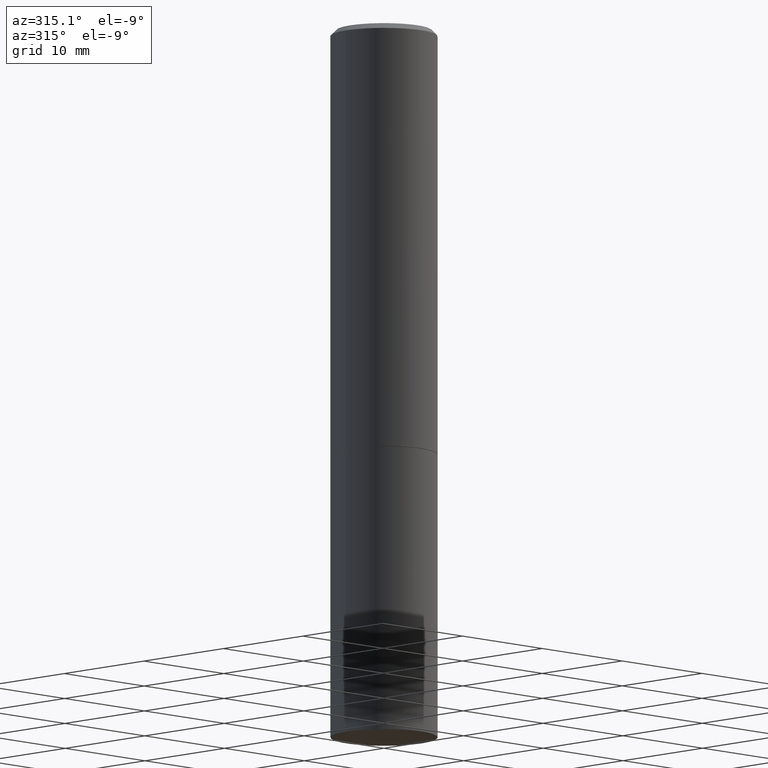
[diagram: clean part render]
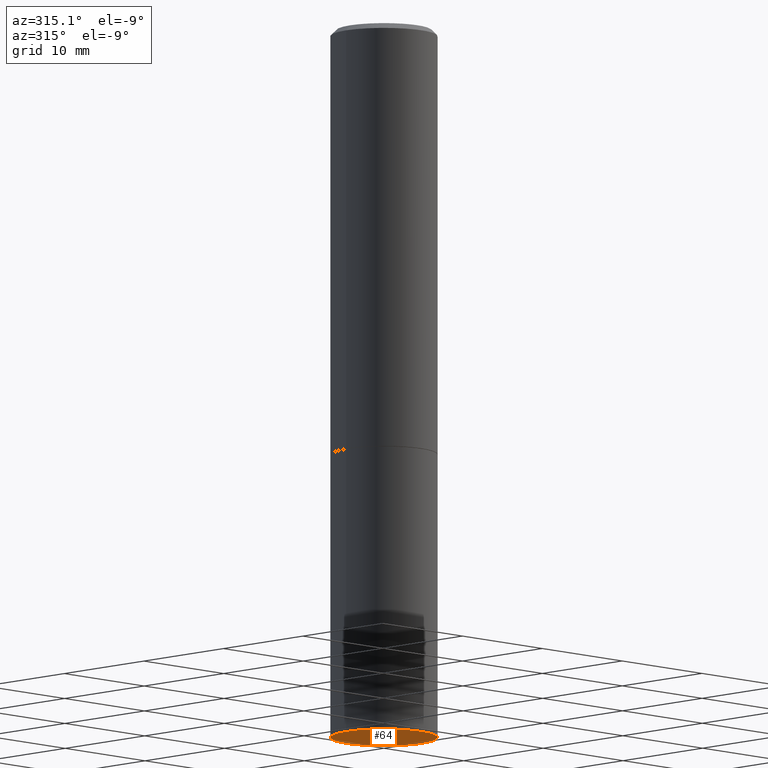
[diagram: same view with one face highlighted and labeled with its STEP entity id]
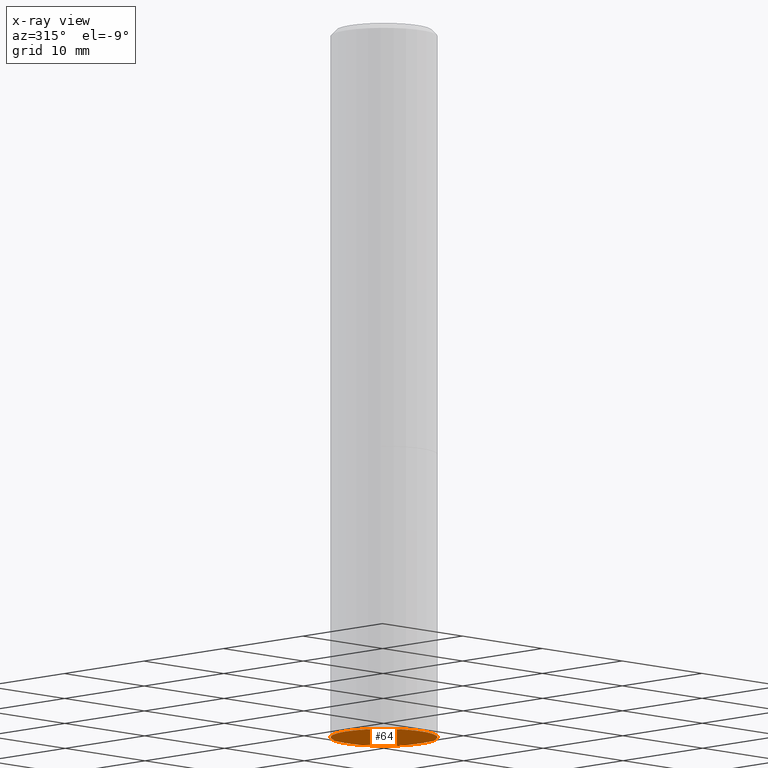
[diagram: x-ray of the same camera — body ghosted, the highlighted face saturated]
A machine part, auxiliary view. The second image highlights one B-rep face of the part: STEP entity #64.
The next image is the same camera in x-ray: the body ghosted, the highlighted face saturated — about 0% of this face is hidden behind the body in this view.
In plain terms, the highlighted planar face has unit normal (0, -0, -1).
Its self-contained STEP definition (entity closure, byte-faithful):
#12 = CARTESIAN_POINT ( 'NONE',  ( -0.1875000000000000278, -5.650695048136103317E-15, -2.500000000000000000 ) ) ;
#64 = ADVANCED_FACE ( 'NONE', ( #233 ), #243, .T. ) ;
#74 = CARTESIAN_POINT ( 'NONE',  ( 6.113672015462842613E-29, -8.728703347107864943E-15, -2.500000000000000000 ) ) ;
#78 = DIRECTION ( 'NONE',  ( 1.000000000000000000, -6.982962677686266711E-15, 0.000000000000000000 ) ) ;
#81 = CIRCLE ( 'NONE', #290, 0.1875000000000000278 ) ;
#82 = DIRECTION ( 'NONE',  ( 1.000000000000000000, -6.982962677686266711E-15, 0.000000000000000000 ) ) ;
#87 = ORIENTED_EDGE ( 'NONE', *, *, #255, .F. ) ;
#94 = CARTESIAN_POINT ( 'NONE',  ( 1.309305502066236145E-15, 0.1874999999999912847, -2.500000000000000444 ) ) ;
#110 = VERTEX_POINT ( 'NONE', #12 ) ;
#111 = CARTESIAN_POINT ( 'NONE',  ( 6.113672015462842613E-29, -8.728703347107864943E-15, -2.500000000000000000 ) ) ;
#122 = EDGE_LOOP ( 'NONE', ( #87, #244 ) ) ;
#131 = CIRCLE ( 'NONE', #260, 0.1875000000000000278 ) ;
#195 = DIRECTION ( 'NONE',  ( -2.445468806185136597E-29, 3.491481338843145583E-15, 1.000000000000000000 ) ) ;
#212 = AXIS2_PLACEMENT_3D ( 'NONE', #94, #215, #318 ) ;
#215 = DIRECTION ( 'NONE',  ( 2.438088387897960049E-29, -3.491481338843145188E-15, -1.000000000000000000 ) ) ;
#233 = FACE_OUTER_BOUND ( 'NONE', #122, .T. ) ;
#234 = EDGE_CURVE ( 'NONE', #110, #341, #81, .T. ) ;
#243 = PLANE ( 'NONE',  #212 ) ;
#244 = ORIENTED_EDGE ( 'NONE', *, *, #234, .F. ) ;
#255 = EDGE_CURVE ( 'NONE', #341, #110, #131, .T. ) ;
#259 = CARTESIAN_POINT ( 'NONE',  ( 0.1875000000000000278, -1.003800884917403995E-14, -2.500000000000000000 ) ) ;
#260 = AXIS2_PLACEMENT_3D ( 'NONE', #111, #305, #78 ) ;
#290 = AXIS2_PLACEMENT_3D ( 'NONE', #74, #195, #82 ) ;
#305 = DIRECTION ( 'NONE',  ( -2.445468806185136597E-29, 3.491481338843145583E-15, 1.000000000000000000 ) ) ;
#318 = DIRECTION ( 'NONE',  ( -1.000000000000000000, 6.982962677686265922E-15, -4.876176775795935793E-29 ) ) ;
#341 = VERTEX_POINT ( 'NONE', #259 ) ;